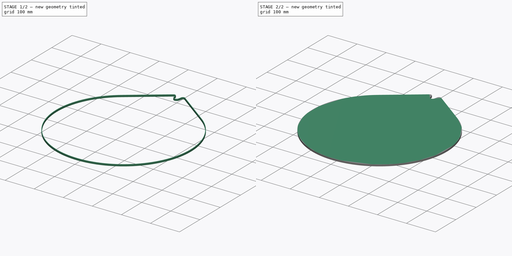
[diagram: build sequence overview — one tinted view per stage of 2, left to right]
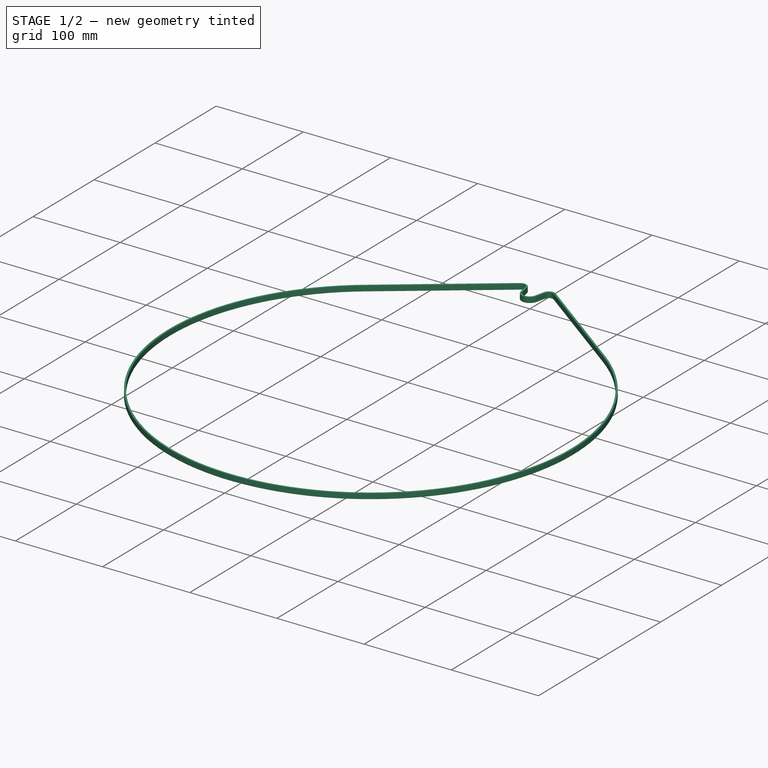
[diagram: stage 1 of 2 — iso view after this stage's code; geometry added in this stage tinted green]
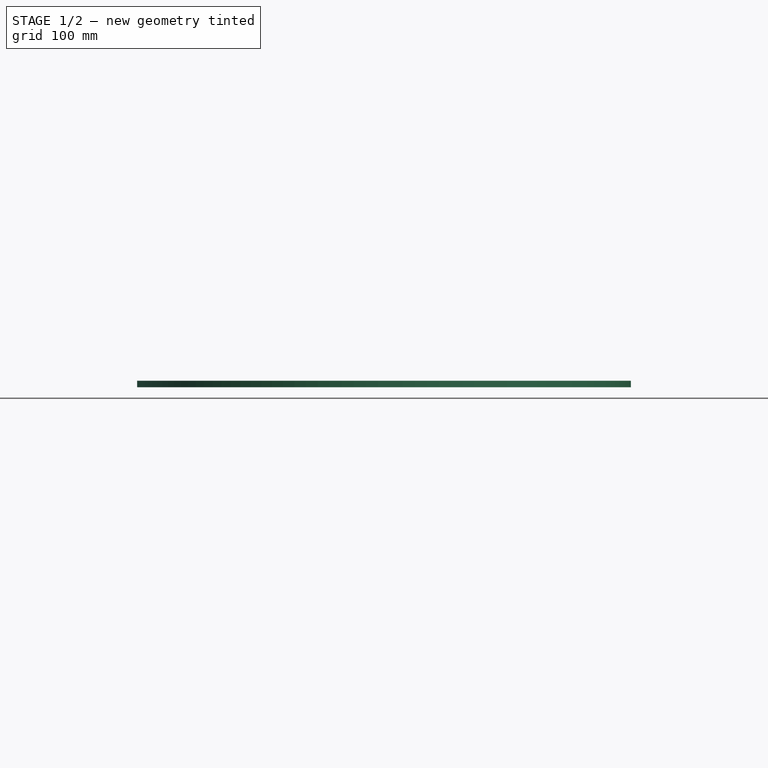
[diagram: stage 1 of 2 — front view after this stage's code; geometry added in this stage tinted green]
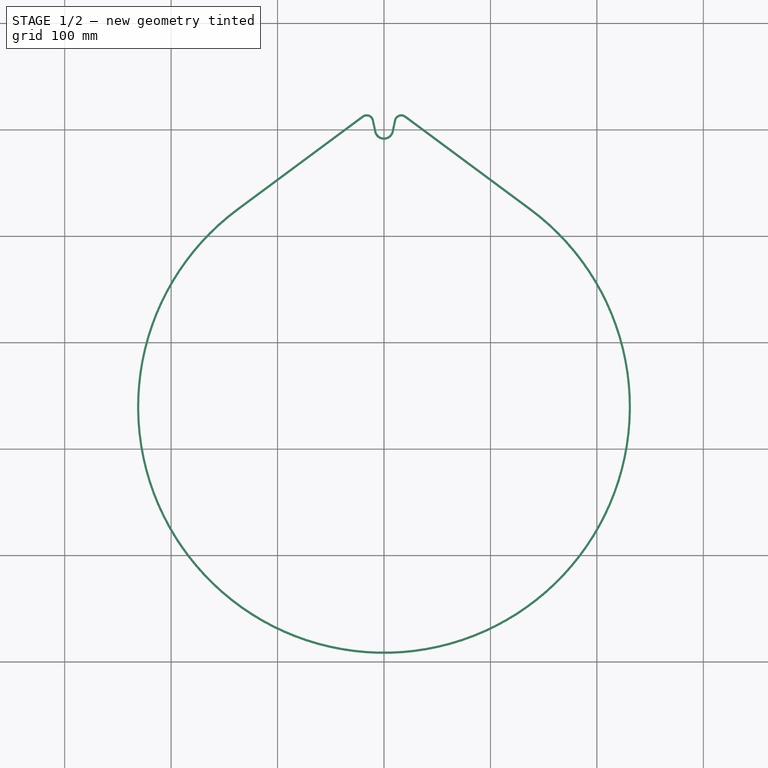
[diagram: stage 1 of 2 — top view after this stage's code; geometry added in this stage tinted green]
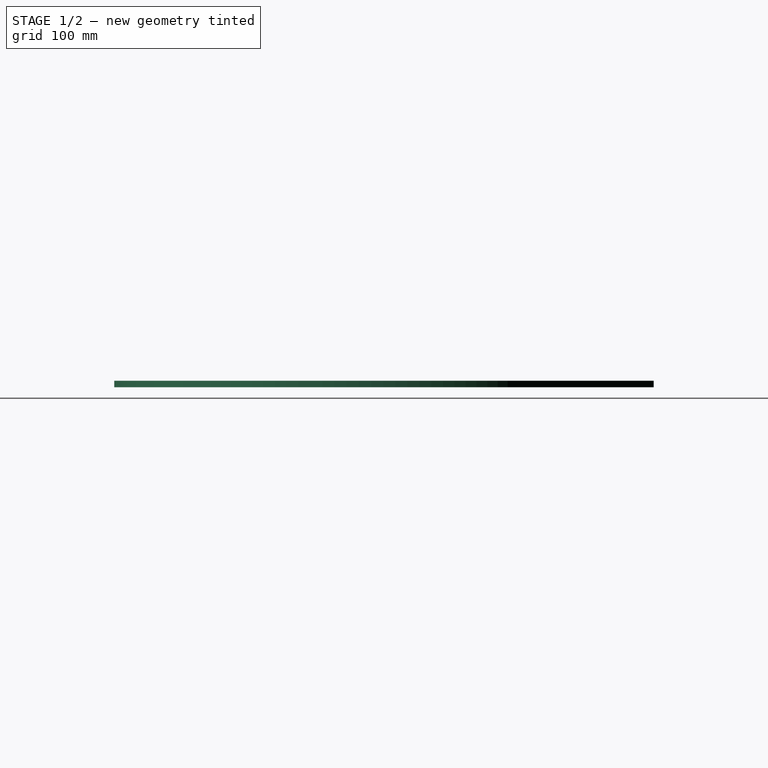
[diagram: stage 1 of 2 — right view after this stage's code; geometry added in this stage tinted green]
FCSTD DOCUMENT  (FreeCAD 0.20R29177 +426 (Git))
Label: RotationDriveBelt
License: All rights reserved
LicenseURL: http://en.wikipedia.org/wiki/All_rights_reserved
objects: App::DocumentObjectGroup×3, Sketcher::SketchObject×2, PartDesign::Pad×2, PartDesign::Body×2, PartDesign::CoordinateSystem×1, App::FeaturePython×1, App::Part×1
note: 9 computed .brp shape members not serialized (recipe doc carries the construction recipe); baked Part::Feature solids carry a one-line shape summary decoded from their .brp
EXTERNAL_REF file=Params.FCStd obj=Spreadsheet
EXTERNAL_REF file=SerpentinePlate.FCStd obj=Variables

FEATURE [PartDesign::Body] Body  label="PerimeterCalc"
  Group = -> [Sketch,Pad]
  Origin = -> Origin001
  Tip = -> Pad
FEATURE [Sketcher::SketchObject] Sketch001
  FullyConstrained = true
  MapMode = 5
  Support = -> [XY_Plane002]
  expr: Constraints[0] = <<SerpentinePlate>>#<<Variables>>.IdlerMountOffsetX
  expr: Constraints[10] = <<Params>>#<<Params>>.CeilingPlateDiameter / 2 + <<Params>>#<<Params>>.RotationDriveOffset
  expr: Constraints[11] = <<SerpentinePlate>>#<<Variables>>.IdlerMountOffsetY
  expr: Constraints[3] = <<Params>>#<<Params>>.CeilingPlateDiameter + 1
  sketch-geometry (19):
    g0: ArcOfCircle CenterX=0 CenterY=-260.5 CenterZ=0 NormalX=0 NormalY=0 NormalZ=1 AngleXU=0 Radius=232 StartAngle=2.20872 EndAngle=7.21605
    g1: ArcOfCircle CenterX=16.3 CenterY=7.5 CenterZ=0 NormalX=0 NormalY=0 NormalZ=1 AngleXU=0 Radius=7 StartAngle=0.932868 EndAngle=2.93081
    g2: ArcOfCircle CenterX=0 CenterY=0 CenterZ=0 NormalX=0 NormalY=0 NormalZ=1 AngleXU=0 Radius=7.37 StartAngle=3.35238 EndAngle=6.0724
    g3: ArcOfCircle CenterX=0 CenterY=-260.5 CenterZ=0 NormalX=0 NormalY=0 NormalZ=1 AngleXU=0 Radius=232 StartAngle=0.932868 EndAngle=1.5708
    g4: ArcOfCircle CenterX=-16.3 CenterY=7.5 CenterZ=0 NormalX=0 NormalY=0 NormalZ=1 AngleXU=0 Radius=7 StartAngle=0.210787 EndAngle=2.20872
    g5: LineSegment StartX=7.20688 StartY=-1.54202 StartZ=0 EndX=9.45493 EndY=8.96461 EndZ=0
    g6: LineSegment StartX=138.163 StartY=-74.1271 StartZ=0 EndX=20.4687 EndY=13.1233 EndZ=0
    g7: LineSegment StartX=-7.20688 StartY=-1.54202 StartZ=0 EndX=-9.45493 EndY=8.96461 EndZ=0
    g8: LineSegment StartX=-138.163 StartY=-74.1271 StartZ=0 EndX=-20.4687 EndY=13.1233 EndZ=0
    g9: ArcOfCircle CenterX=0 CenterY=-260.5 CenterZ=0 NormalX=0 NormalY=0 NormalZ=1 AngleXU=0 Radius=230 StartAngle=2.20872 EndAngle=7.21605
    g10: ArcOfCircle CenterX=16.3 CenterY=7.5 CenterZ=0 NormalX=0 NormalY=0 NormalZ=1 AngleXU=0 Radius=5 StartAngle=0.932868 EndAngle=2.93081
    g11: ArcOfCircle CenterX=0 CenterY=0 CenterZ=0 NormalX=0 NormalY=0 NormalZ=1 AngleXU=0 Radius=9.37 StartAngle=3.35238 EndAngle=6.0724
    g12: ArcOfCircle CenterX=-16.3 CenterY=7.5 CenterZ=0 NormalX=0 NormalY=0 NormalZ=1 AngleXU=0 Radius=5 StartAngle=0.210787 EndAngle=2.20872
    g13: LineSegment StartX=9.16261 StartY=-1.96048 StartZ=0 EndX=11.4107 EndY=8.54615 EndZ=0
    g14: LineSegment StartX=136.972 StartY=-75.7338 StartZ=0 EndX=19.2777 EndY=11.5167 EndZ=0
    g15: LineSegment StartX=-9.16261 StartY=-1.96048 StartZ=0 EndX=-11.4107 EndY=8.54615 EndZ=0
    g16: LineSegment StartX=-136.972 StartY=-75.7338 StartZ=0 EndX=-19.2777 EndY=11.5167 EndZ=0
    g17: LineSegment StartX=11.4107 StartY=8.54615 StartZ=0 EndX=9.45493 EndY=8.96461 EndZ=0
    g18: LineSegment StartX=138.163 StartY=-74.1271 StartZ=0 EndX=136.972 EndY=-75.7338 EndZ=0
  constraints (45):
    c: DistanceX(g2,g1) = 16.3
    c: Radius(g1) = 7
    c: Radius(g2) = 7.37
    c: Diameter(g0) = 464
    c: PointOnObject(g3,g-2)
    c: Tangent(g3,g0) = -1.5708
    c: Coincident(g3,g0)
    c: Coincident(g2,g-1)
    c: PointOnObject(g0,g-2)
    c: Equal(g4,g1)
    c: DistanceY(g0,g2) = 260.5
    c: DistanceY(g2,g1) = 7.5
    c: Tangent(g5,g1) = 1.5708
    c: Tangent(g5,g2) = -1.5708
    c: Tangent(g6,g1) = -1.5708
    c: Tangent(g6,g0) = -1.5708
    c: Tangent(g7,g4) = -1.5708
    c: Tangent(g7,g2) = 1.5708
    c: Tangent(g8,g4) = 1.5708
    c: Tangent(g8,g0) = 1.5708
    c: Equal(g7,g5)
    c: Equal(g6,g8)
    c: DistanceX(g11,g10) = 16.3
    c: DistanceY(g11,g10) = 7.5
    c: Tangent(g13,g10) = 1.5708
    c: Tangent(g13,g11) = -1.5708
    c: Tangent(g14,g10) = -1.5708
    c: Tangent(g14,g9) = -1.5708
    c: Tangent(g15,g12) = -1.5708
    c: Tangent(g15,g11) = 1.5708
    c: Tangent(g16,g12) = 1.5708
    c: Tangent(g16,g9) = 1.5708
    c: Equal(g15,g13)
    c: Coincident(g9,g0)
    c: Coincident(g11,g2)
    c: Coincident(g12,g4)
    c: Coincident(g17,g10)
    c: Perpendicular(g13,g17)
    c: PointOnObject(g17,g5)
    c: Parallel(g13,g5)
    c: Distance(g17) = 2
    c: Coincident(g18,g0)
    c: Perpendicular(g6,g18)
    c: PointOnObject(g18,g14)
    c: Equal(g18,g17)
FEATURE [PartDesign::Pad] Pad001
  Direction = (0,0,1)
  Length = 6
  Length2 = 10
  Profile = -> Sketch001
  ReferenceAxis = -> Sketch001 [N_Axis]
  Type = 0
FEATURE [PartDesign::Body] Body001
  Group = -> [Sketch001,Pad001]
  Origin = -> Origin002
  Tip = -> Pad001
FEATURE [App::Part] Assembly
  AssemblyType = Part::Link
  Group = -> [LCS_Origin,Variables,Constraints,Configurations,Body,Body001]
  Origin = -> Origin
  Type = Assembly
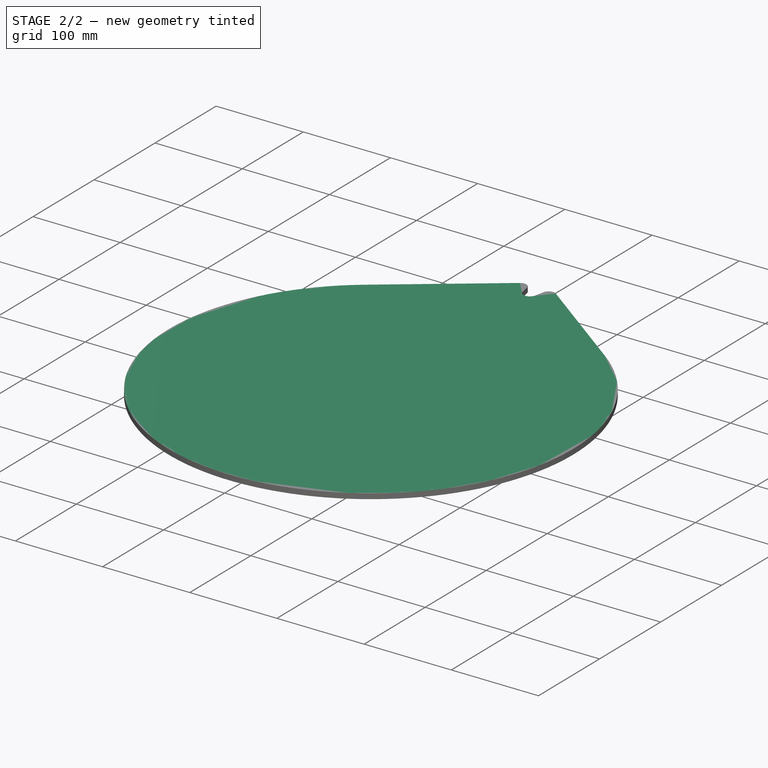
[diagram: stage 2 of 2 — iso view after this stage's code; geometry added in this stage tinted green]
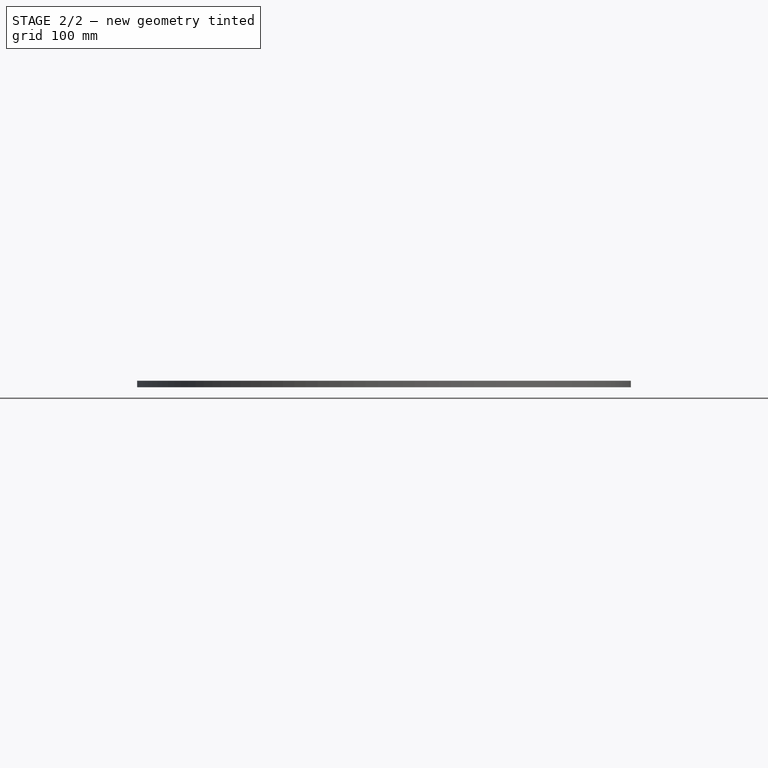
[diagram: stage 2 of 2 — front view after this stage's code; geometry added in this stage tinted green]
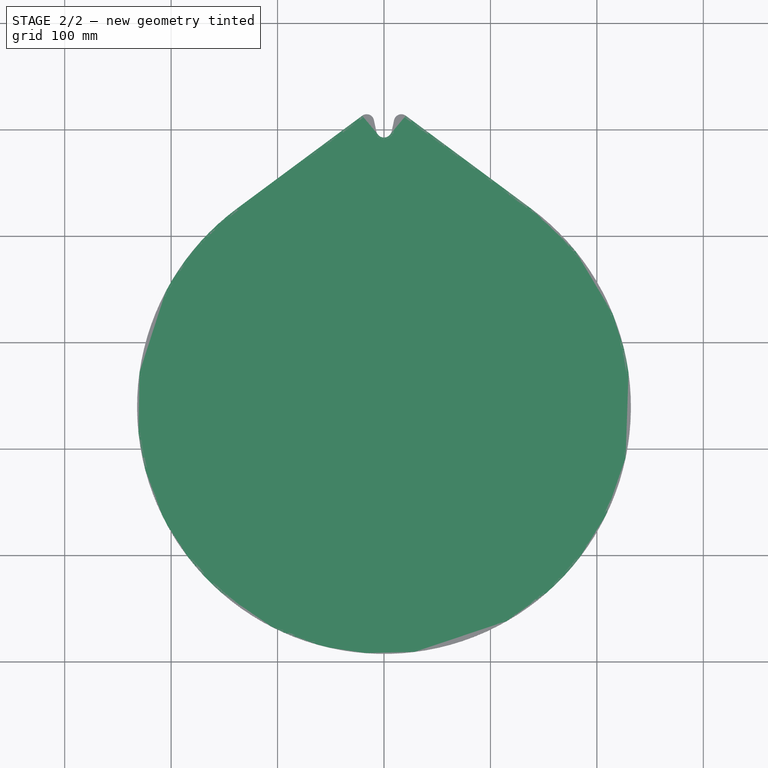
[diagram: stage 2 of 2 — top view after this stage's code; geometry added in this stage tinted green]
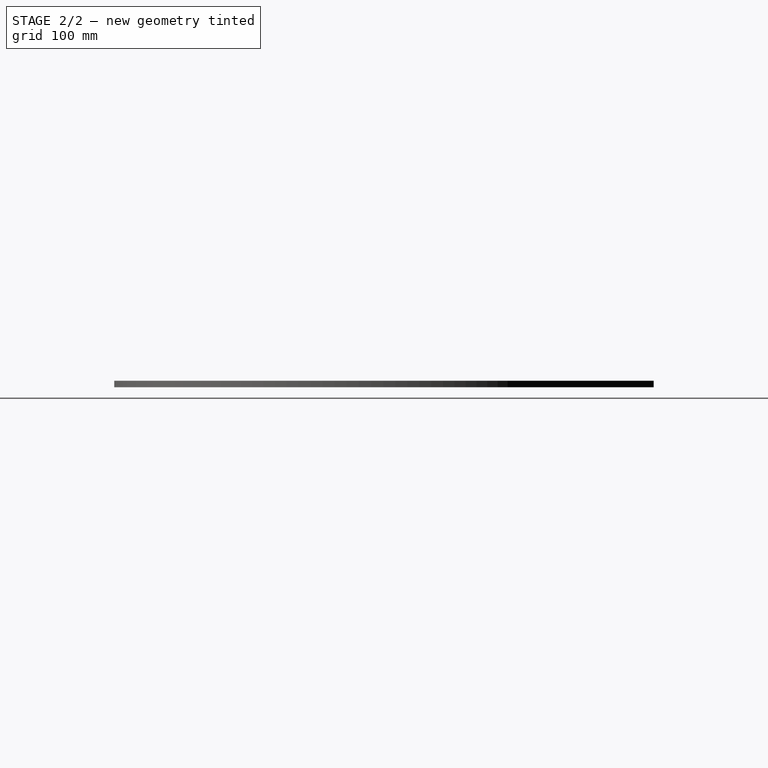
[diagram: stage 2 of 2 — right view after this stage's code; geometry added in this stage tinted green]
FEATURE [App::DocumentObjectGroup] Parts
FEATURE [PartDesign::CoordinateSystem] LCS_Origin
  AttacherType = Attacher::AttachEngine3D
  MapMode = 2
  Support = -> [X_Axis]
FEATURE [App::FeaturePython] Variables  # WARN: FeaturePython — macro-defined, semantics opaque (R4)
  Type = App::PropertyContainer
FEATURE [App::DocumentObjectGroup] Constraints
FEATURE [App::DocumentObjectGroup] Configurations
FEATURE [Sketcher::SketchObject] Sketch
  FullyConstrained = true
  MapMode = 5
  Support = -> [XY_Plane001]
  expr: Constraints[0] = <<SerpentinePlate>>#<<Variables>>.IdlerMountOffsetX
  expr: Constraints[10] = <<Params>>#<<Params>>.CeilingPlateDiameter / 2 + <<Params>>#<<Params>>.RotationDriveOffset
  expr: Constraints[11] = <<SerpentinePlate>>#<<Variables>>.IdlerMountOffsetY
  expr: Constraints[3] = <<Params>>#<<Params>>.CeilingPlateDiameter + 1
  sketch-geometry (9):
    g0: ArcOfCircle CenterX=1.16e-14 CenterY=-260.5 CenterZ=0 NormalX=0 NormalY=0 NormalZ=1 AngleXU=0 Radius=232 StartAngle=2.20872 EndAngle=7.21605
    g1: ArcOfCircle CenterX=16.3 CenterY=7.5 CenterZ=0 NormalX=0 NormalY=0 NormalZ=1 AngleXU=0 Radius=7 StartAngle=0.932868 EndAngle=2.93081
    g2: ArcOfCircle CenterX=0 CenterY=0 CenterZ=0 NormalX=0 NormalY=0 NormalZ=1 AngleXU=0 Radius=7.37 StartAngle=3.35238 EndAngle=6.0724
    g3: ArcOfCircle CenterX=1.16e-14 CenterY=-260.5 CenterZ=0 NormalX=0 NormalY=0 NormalZ=1 AngleXU=0 Radius=232 StartAngle=0.932868 EndAngle=1.5708
    g4: ArcOfCircle CenterX=-16.3 CenterY=7.5 CenterZ=0 NormalX=0 NormalY=0 NormalZ=1 AngleXU=0 Radius=7 StartAngle=0.210787 EndAngle=2.20872
    g5: LineSegment StartX=7.20688 StartY=-1.54202 StartZ=0 EndX=9.45493 EndY=8.96461 EndZ=0
    g6: LineSegment StartX=138.163 StartY=-74.1271 StartZ=0 EndX=20.4687 EndY=13.1233 EndZ=0
    g7: LineSegment StartX=-7.20688 StartY=-1.54202 StartZ=0 EndX=-9.45493 EndY=8.96461 EndZ=0
    g8: LineSegment StartX=-138.163 StartY=-74.1271 StartZ=0 EndX=-20.4687 EndY=13.1233 EndZ=0
  constraints (22):
    c: DistanceX(g2,g1) = 16.3
    c: Radius(g1) = 7
    c: Radius(g2) = 7.37
    c: Diameter(g0) = 464
    c: PointOnObject(g3,g-2)
    c: Tangent(g3,g0) = -1.5708
    c: Coincident(g3,g0)
    c: Coincident(g2,g-1)
    c: PointOnObject(g0,g-2)
    c: Equal(g4,g1)
    c: DistanceY(g0,g2) = 260.5
    c: DistanceY(g2,g1) = 7.5
    c: Tangent(g5,g1) = 1.5708
    c: Tangent(g5,g2) = -1.5708
    c: Tangent(g6,g1) = -1.5708
    c: Tangent(g6,g0) = -1.5708
    c: Tangent(g7,g4) = -1.5708
    c: Tangent(g7,g2) = 1.5708
    c: Tangent(g8,g4) = 1.5708
    c: Tangent(g8,g0) = 1.5708
    c: Equal(g7,g5)
    c: Equal(g6,g8)
FEATURE [PartDesign::Pad] Pad
  Direction = (0,0,1)
  Length = 6
  Length2 = 10
  Profile = -> Sketch
  ReferenceAxis = -> Sketch [N_Axis]
  Type = 0
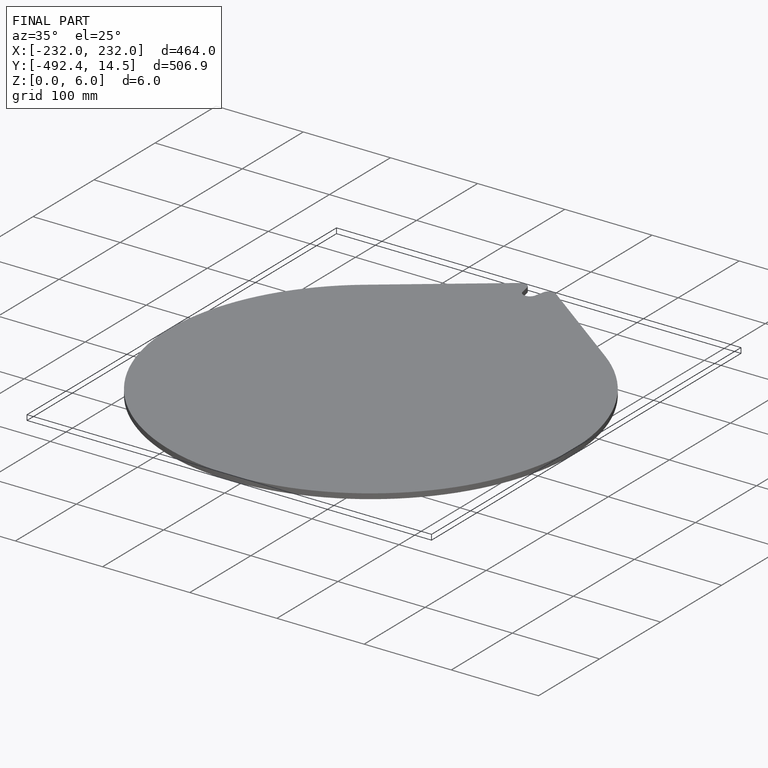
[diagram: finished part — iso view with bounding-box wireframe]
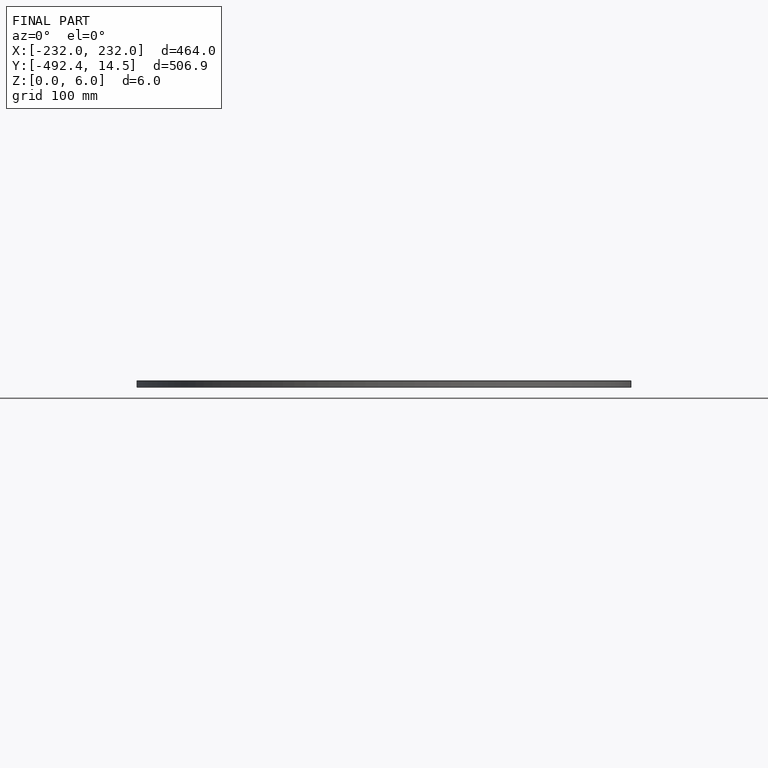
[diagram: finished part — front view with bounding-box wireframe]
